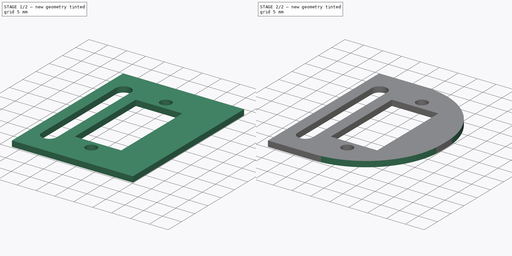
[diagram: build sequence overview — one tinted view per stage of 2, left to right]
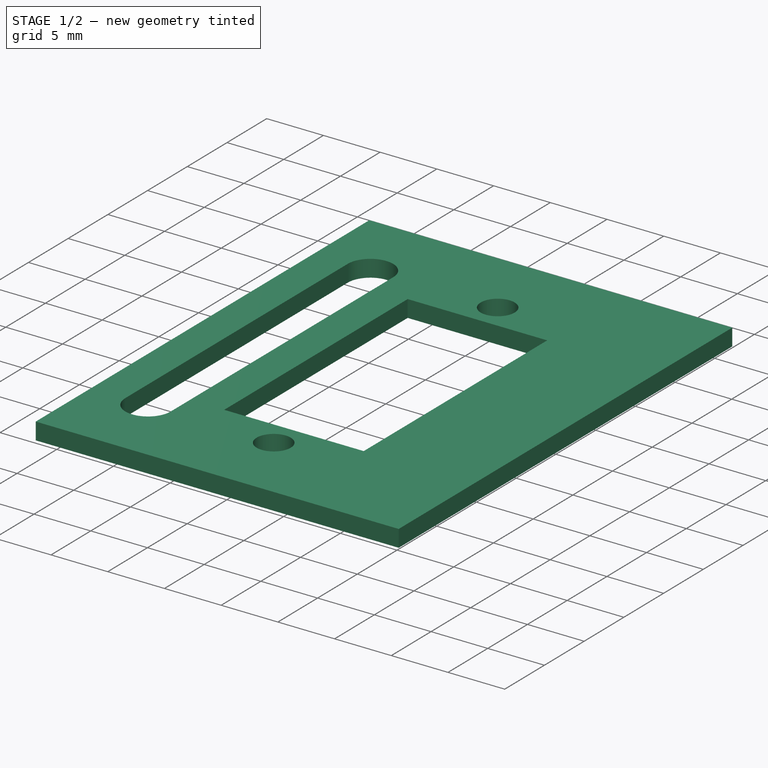
[diagram: stage 1 of 2 — iso view after this stage's code; geometry added in this stage tinted green]
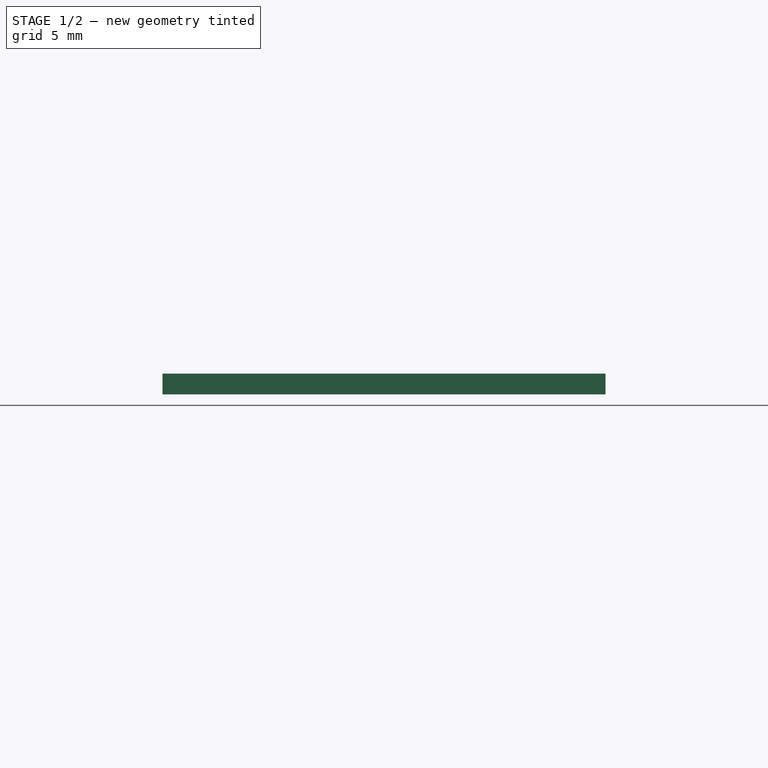
[diagram: stage 1 of 2 — front view after this stage's code; geometry added in this stage tinted green]
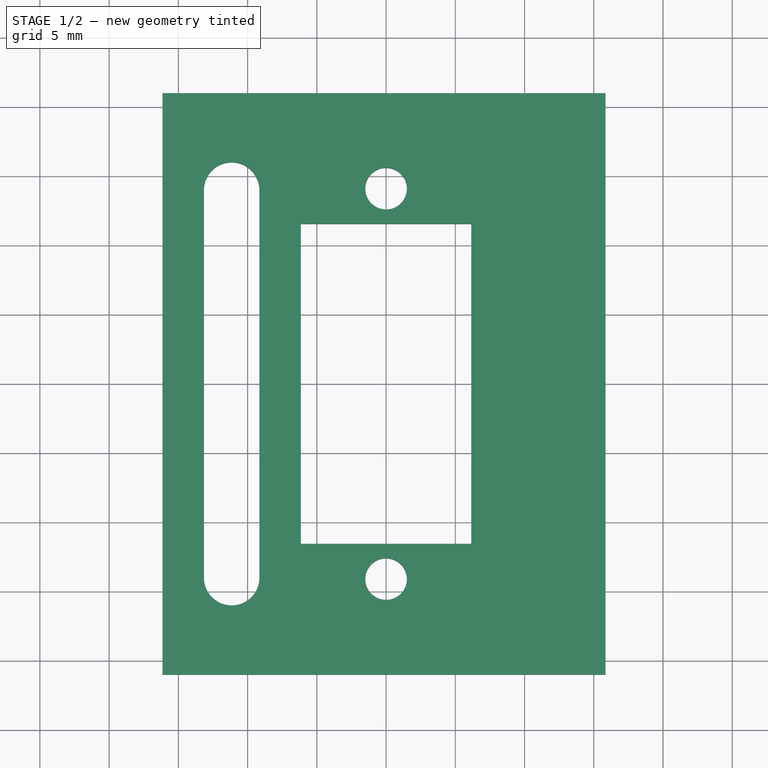
[diagram: stage 1 of 2 — top view after this stage's code; geometry added in this stage tinted green]
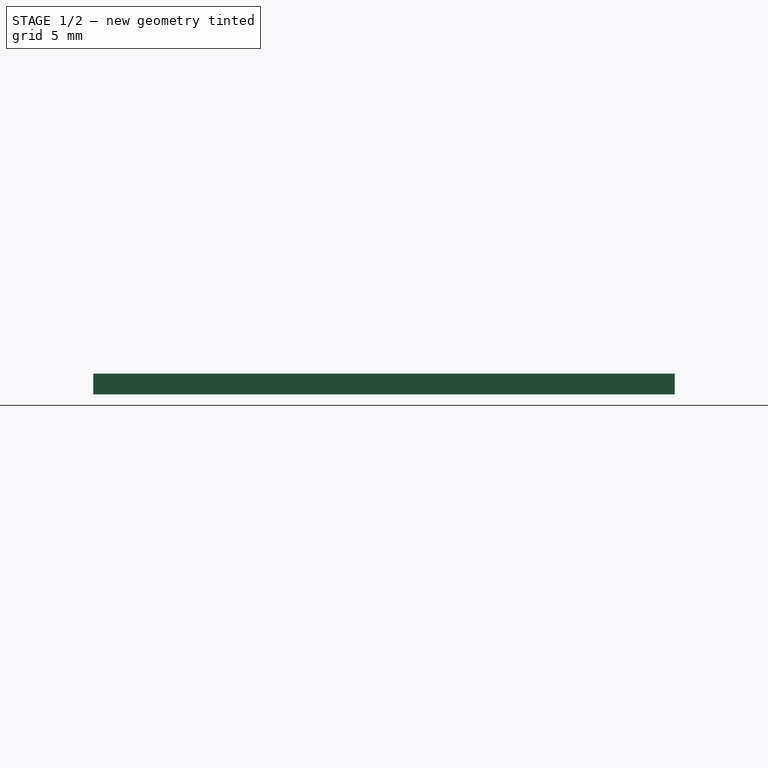
[diagram: stage 1 of 2 — right view after this stage's code; geometry added in this stage tinted green]
FCSTD DOCUMENT  (FreeCAD 0.18R4 (GitTag))
Label: Vertical Second Base
License: All rights reserved
LicenseURL: http://en.wikipedia.org/wiki/All_rights_reserved
objects: Sketcher::SketchObject×1, Part::Extrusion×1, Part::Fillet×1
note: 3 computed .brp shape members not serialized (recipe doc carries the construction recipe); baked Part::Feature solids carry a one-line shape summary decoded from their .brp

FEATURE [Sketcher::SketchObject] Sketch001  label="Base"
  sketch-geometry (15):
    g0: LineSegment StartX=-16.15 StartY=-21 StartZ=0 EndX=-16.15 EndY=21 EndZ=0
    g1: LineSegment StartX=-6.15 StartY=11.55 StartZ=0 EndX=6.15 EndY=11.55 EndZ=0
    g2: LineSegment StartX=6.15 StartY=11.55 StartZ=0 EndX=6.15 EndY=-11.55 EndZ=0
    g3: LineSegment StartX=6.15 StartY=-11.55 StartZ=0 EndX=-6.15 EndY=-11.55 EndZ=0
    g4: LineSegment StartX=-6.15 StartY=-11.55 StartZ=0 EndX=-6.15 EndY=11.55 EndZ=0
    g5: Circle CenterX=0 CenterY=14.1 CenterZ=0 NormalX=0 NormalY=0 NormalZ=1 AngleXU=0 Radius=1.5
    g6: Circle CenterX=0 CenterY=-14.1 CenterZ=0 NormalX=0 NormalY=0 NormalZ=1 AngleXU=0 Radius=1.5
    g7: GeomPoint X=-16.15 Y=0 Z=0
    g8: LineSegment StartX=-16.15 StartY=21 StartZ=0 EndX=15.85 EndY=21 EndZ=0
    g9: LineSegment StartX=15.85 StartY=-21 StartZ=0 EndX=-16.15 EndY=-21 EndZ=0
    g10: LineSegment StartX=15.85 StartY=21 StartZ=0 EndX=15.85 EndY=-21 EndZ=0
    g11: ArcOfCircle CenterX=-11.15 CenterY=14 CenterZ=0 NormalX=0 NormalY=0 NormalZ=1 AngleXU=0 Radius=2 StartAngle=0 EndAngle=3.14159
    g12: ArcOfCircle CenterX=-11.15 CenterY=-14 CenterZ=0 NormalX=0 NormalY=0 NormalZ=1 AngleXU=0 Radius=2 StartAngle=3.14159 EndAngle=6.28319
    g13: LineSegment StartX=-13.15 StartY=14 StartZ=0 EndX=-13.15 EndY=-14 EndZ=0
    g14: LineSegment StartX=-9.15 StartY=14 StartZ=0 EndX=-9.15 EndY=-14 EndZ=0
  constraints (40):
    c: Vertical(g0)
    c: Coincident(g1,g2)
    c: Coincident(g2,g3)
    c: Coincident(g3,g4)
    c: Coincident(g4,g1)
    c: Vertical(g4)
    c: DistanceX(g3,g3) = 12.3
    c: DistanceY(g2,g2) = 23.1
    c: Symmetric(g2,g1,g-1)
    c: Symmetric(g1,g1,g-2)
    c: Radius(g6) = 1.5
    c: Radius(g5) = 1.5
    c: Equal(g2,g4)
    c: DistanceY(g6,g5) = 28.2
    c: PointOnObject(g5,g-2)
    c: PointOnObject(g6,g-2)
    c: DistanceY(g-1,g5) = 14.1
    c: DistanceX(g0,g1) = 10
    c: DistanceY(g0,g0) = 42
    c: PointOnObject(g7,g0)
    c: DistanceY(g7,g0) = 21
    c: PointOnObject(g7,g-1)
    c: Parallel(g8,g1)
    c: Parallel(g9,g8)
    c: DistanceX(g9,g9) = 32
    c: Coincident(g9,g0)
    c: DistanceX(g8,g8) = 32
    c: Coincident(g8,g0)
    c: Coincident(g10,g8)
    c: Coincident(g10,g9)
    c: Tangent(g11,g14) = 1.5708
    c: Tangent(g11,g13) = -1.5708
    c: Tangent(g13,g12) = -1.5708
    c: Tangent(g14,g12) = 1.5708
    c: Vertical(g13)
    c: Equal(g11,g12)
    c: DistanceY(g12,g11) = 28
    c: DistanceY(g-1,g11) = 14
    c: DistanceX(g11,g11) = 4
    c: DistanceX(g11,g1) = 3
FEATURE [Part::Extrusion] Extrude
  Base = -> Sketch001
  Dir = (0,0,1)
  DirMode = 2
  FaceMakerClass = Part::FaceMakerBullseye
  LengthFwd = 1.5
  LengthRev = 0
  Solid = true
  Symmetric = false
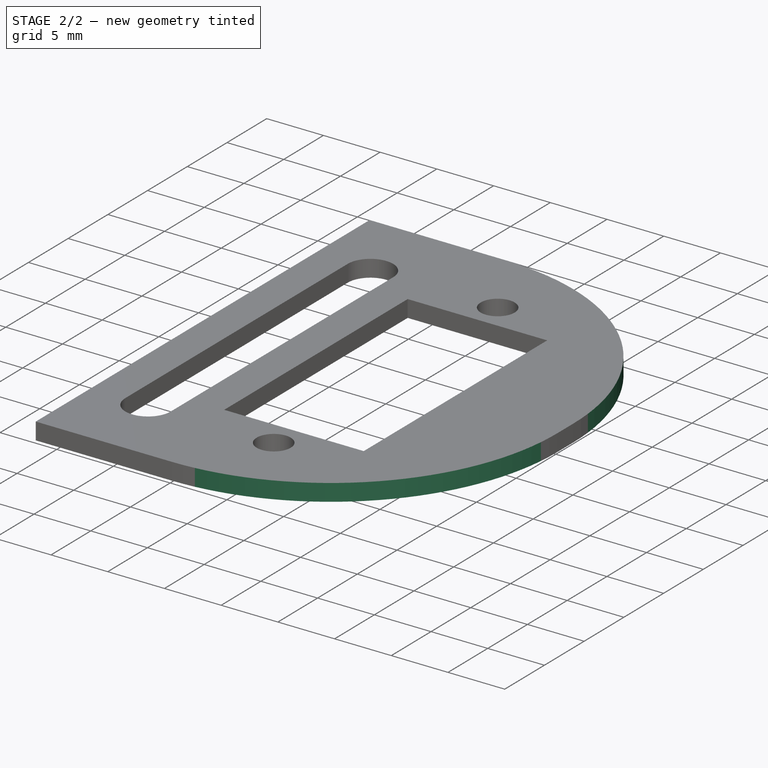
[diagram: stage 2 of 2 — iso view after this stage's code; geometry added in this stage tinted green]
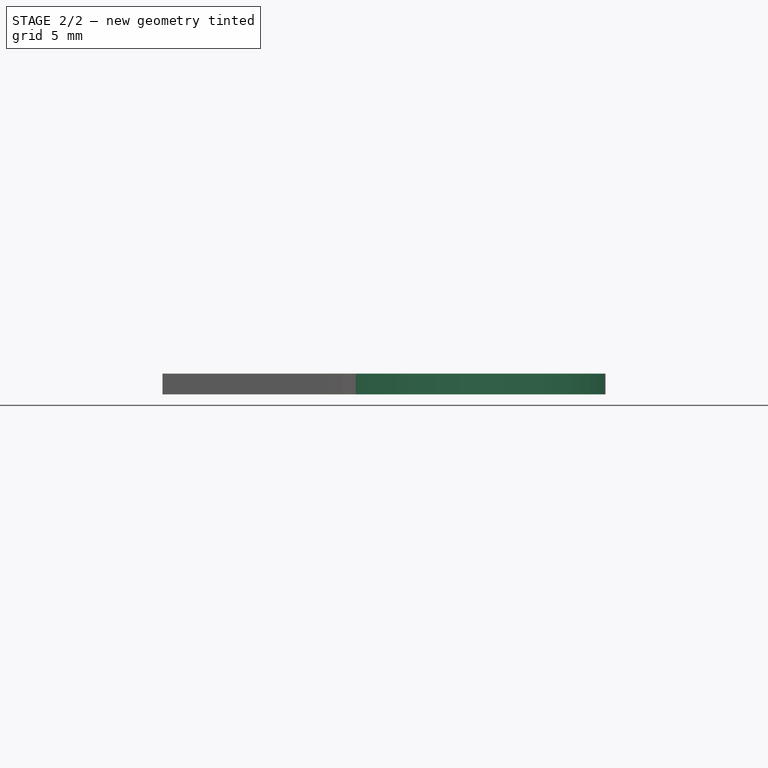
[diagram: stage 2 of 2 — front view after this stage's code; geometry added in this stage tinted green]
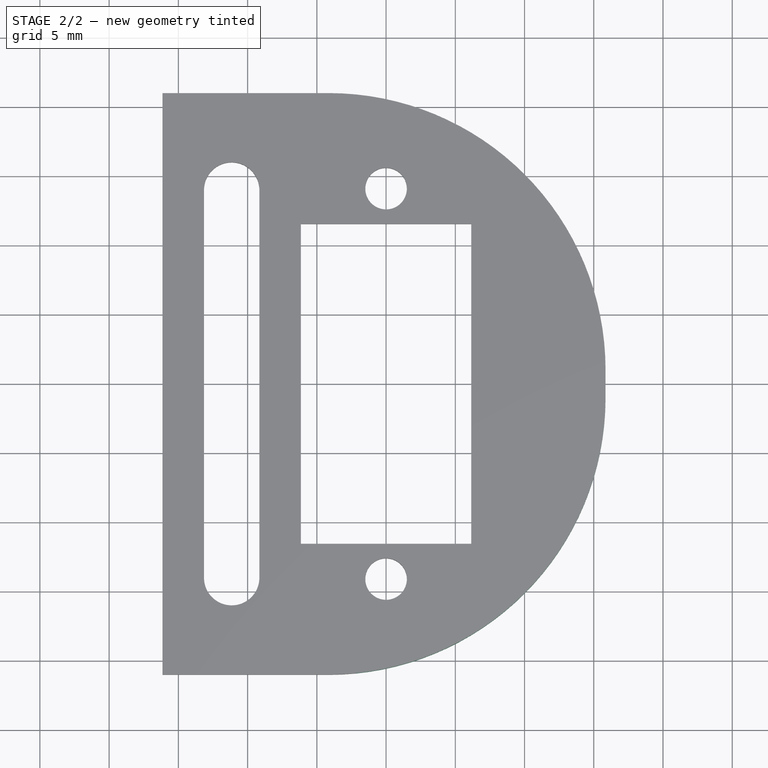
[diagram: stage 2 of 2 — top view after this stage's code; geometry added in this stage tinted green]
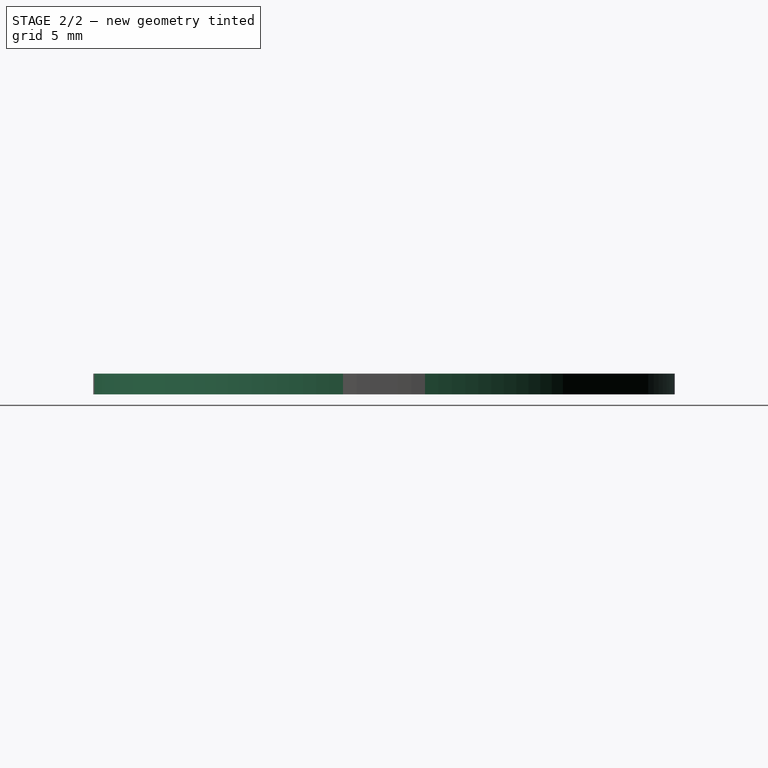
[diagram: stage 2 of 2 — right view after this stage's code; geometry added in this stage tinted green]
FEATURE [Part::Fillet] Fillet
  Base = -> Extrude
  Edges = 2 edges r=20: [Edge5,Edge8]
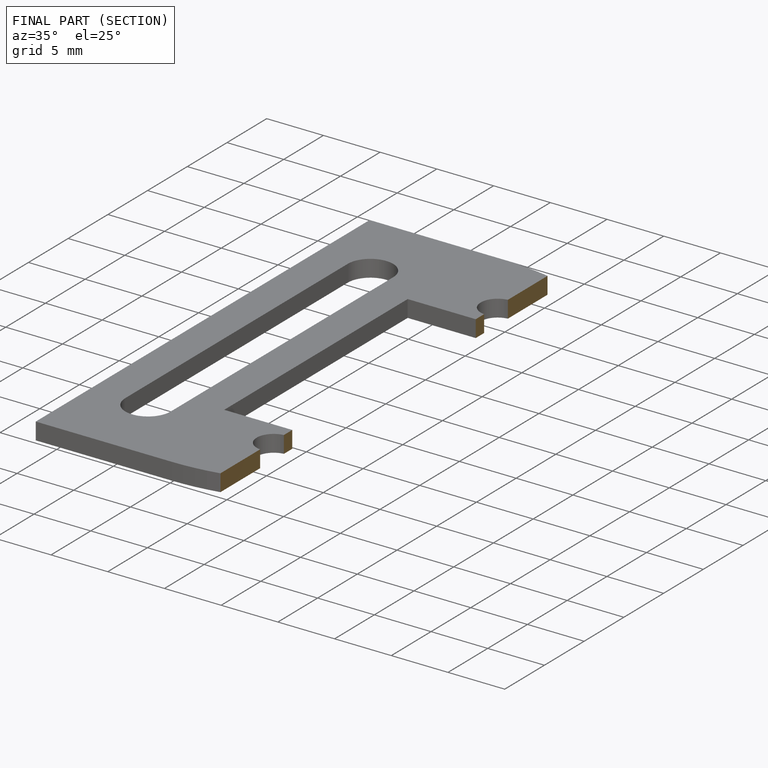
[diagram: finished part — half-section view (interior)]
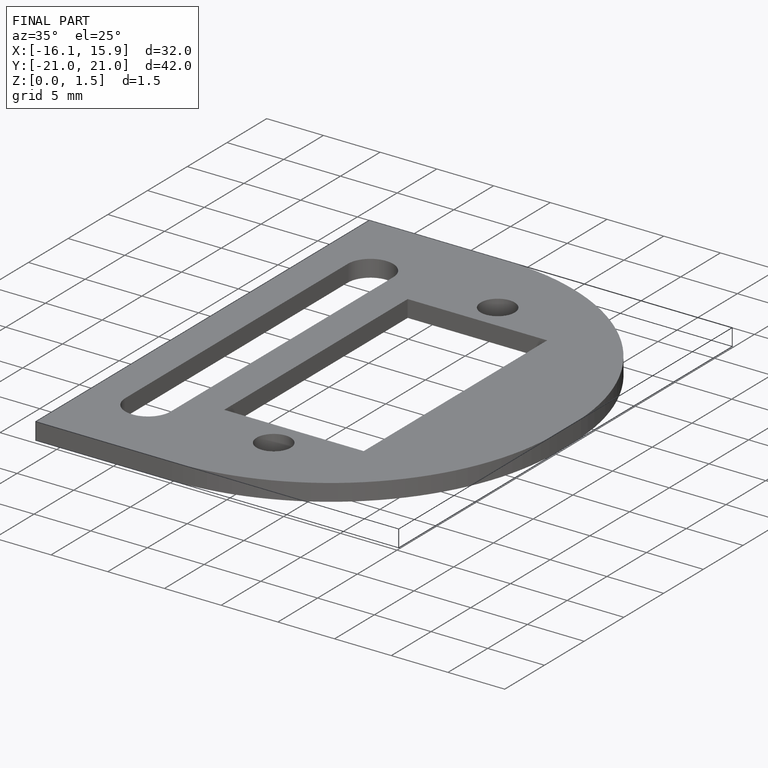
[diagram: finished part — iso view with bounding-box wireframe]
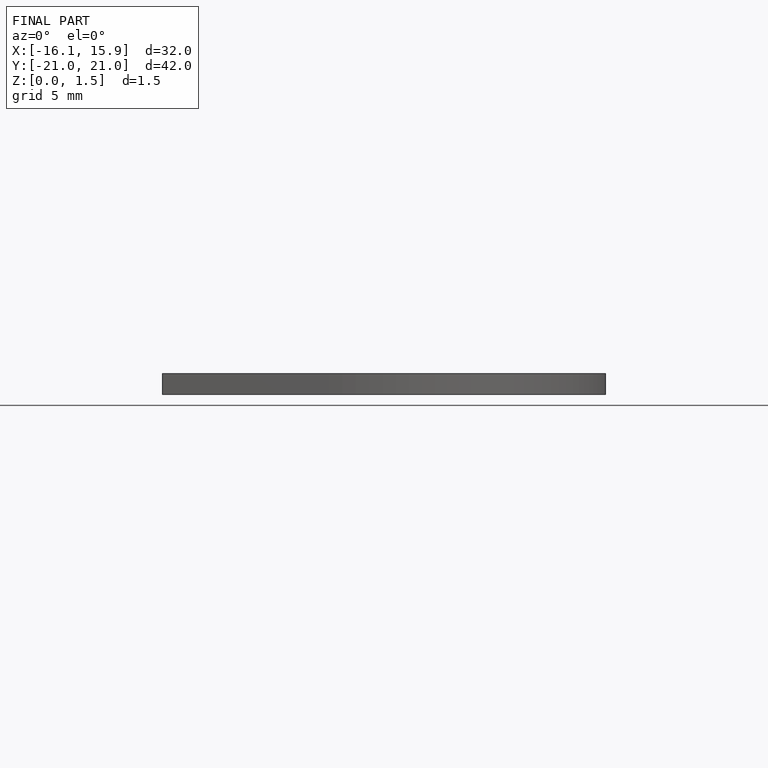
[diagram: finished part — front view with bounding-box wireframe]
